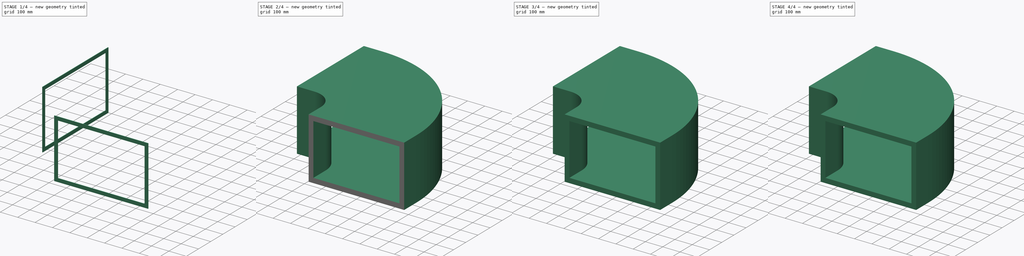
[diagram: build sequence overview — one tinted view per stage of 4, left to right]
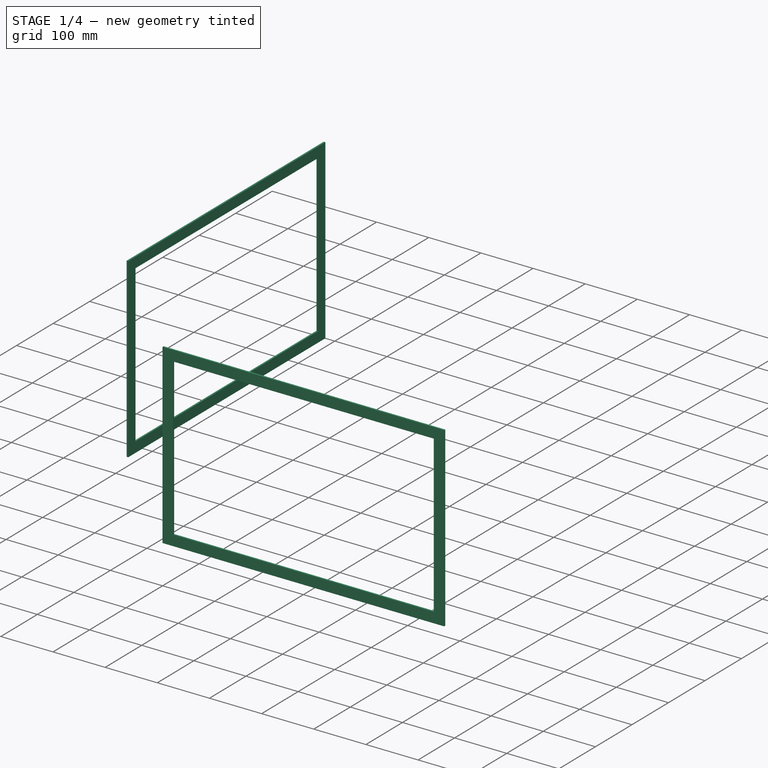
[diagram: stage 1 of 4 — iso view after this stage's code; geometry added in this stage tinted green]
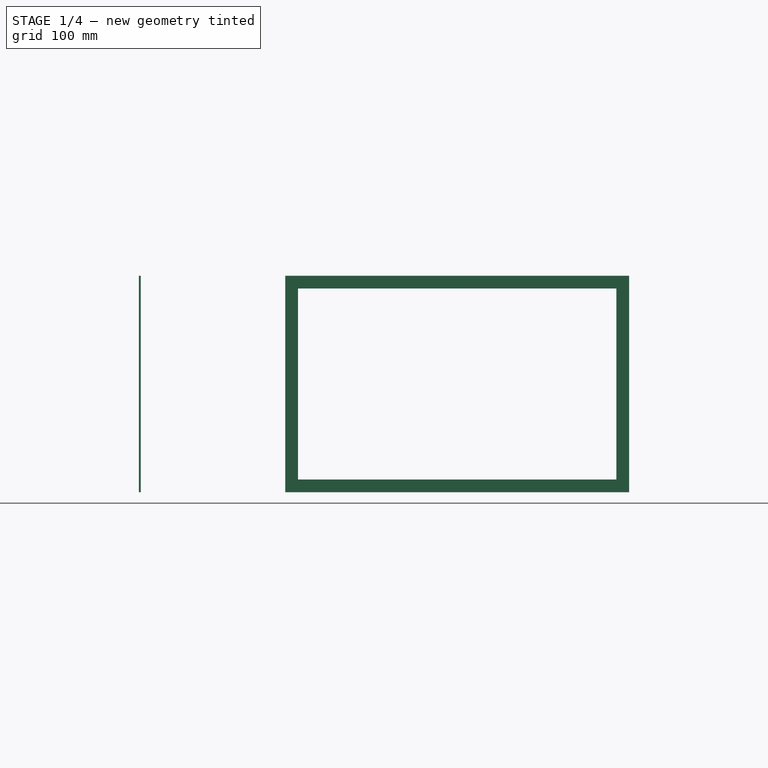
[diagram: stage 1 of 4 — front view after this stage's code; geometry added in this stage tinted green]
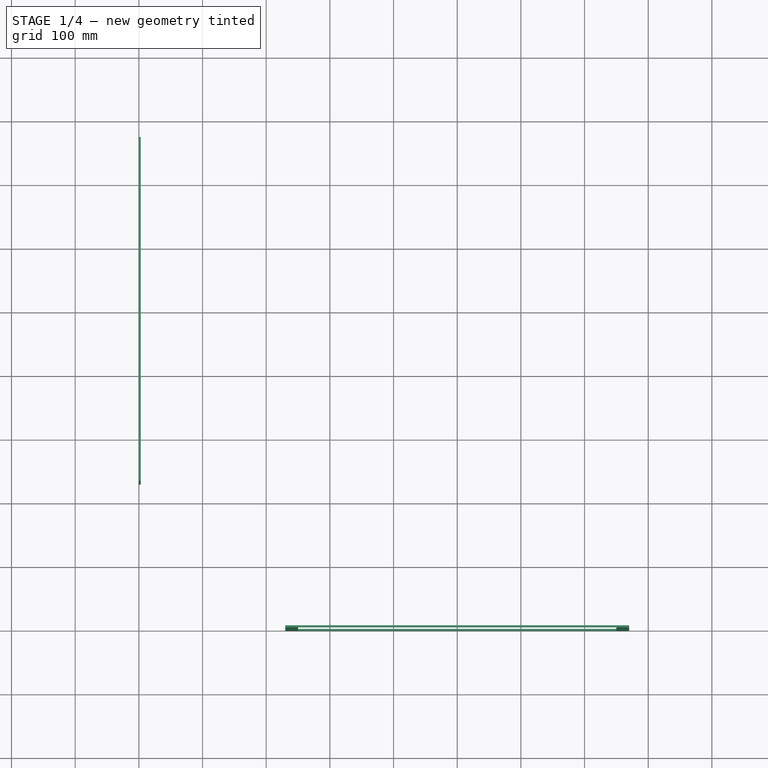
[diagram: stage 1 of 4 — top view after this stage's code; geometry added in this stage tinted green]
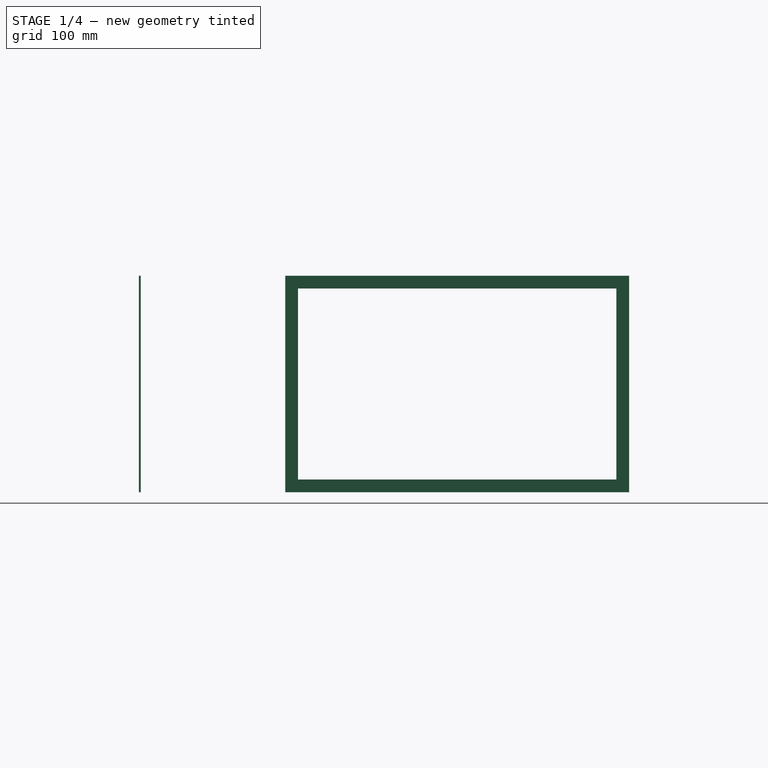
[diagram: stage 1 of 4 — right view after this stage's code; geometry added in this stage tinted green]
FCSTD DOCUMENT  (FreeCAD 0.16R6704 (Git))
Label: Extended_retangular_bend
License: All rights reserved
LicenseURL: http://en.wikipedia.org/wiki/All_rights_reserved
objects: App::DocumentObjectGroup×7, Sketcher::SketchObject×4, Part::FeaturePython×4, Part::Thickness×2, Part::Extrusion×2, Part::Cut×2, Part::Sweep×1, Part::Compound×1, Spreadsheet::Sheet×1
note: 16 computed .brp shape members not serialized (recipe doc carries the construction recipe); baked Part::Feature solids carry a one-line shape summary decoded from their .brp

FEATURE [Sketcher::SketchObject] Sketch036  label="ANGLE_RADIUS_conector"
  expr: Constraints.Extension_01 = Settings_rectangular_extended_conection.e_side_1
  expr: Constraints.Curvature_angle = Settings_rectangular_extended_conection.a_curvature
  expr: Constraints.Extension_02 = Settings_rectangular_extended_conection.e_side_2
  expr: Constraints.Axis_radius = Settings_rectangular_extended_conection.r_axis
  sketch-geometry (5):
    g0: ArcOfCircle CenterX=100 CenterY=-400 CenterZ=0 NormalX=0 NormalY=0 NormalZ=1 Radius=400 StartAngle=0 EndAngle=1.5708
    g1: LineSegment [constr] StartX=100 StartY=-400 StartZ=0 EndX=100 EndY=-3.28074e-05 EndZ=0
    g2: LineSegment [constr] StartX=100 StartY=-400 StartZ=0 EndX=500 EndY=-400 EndZ=0
    g3: LineSegment StartX=100 StartY=-3.28074e-05 StartZ=0 EndX=0 EndY=0 EndZ=0
    g4: LineSegment StartX=500 StartY=-400 StartZ=0 EndX=500 EndY=-500 EndZ=0
  constraints (15):
    c: Coincident(g1,g0)
    c: Coincident(g1,g0)
    c: Coincident(g2,g0)
    c: Coincident(g2,g0)
    c: Angle(g2,g1) = 1.5708  'Curvature_angle'
    c: Radius(g0) = 400  'Axis_radius'
    c: Tangent(g3,g0)  'Constraint7'
    c: Tangent(g0,g4)
    c: Coincident(g0,g4)
    c: Coincident(g3,g0)
    c: Distance(g3) = 100  'Extension_01'
    c: Distance(g4) = 100  'Extension_02'
    c: Vertical(g1)
    c: DistanceX(g-1,g3) = 0
    c: DistanceY(g-1,g3) = 0
FEATURE [Sketcher::SketchObject] Sketch037  label="DIMENSIONS_rectangle_01"
  Placement = pos=(0,0,0) rot=(0.57735,0.57735,0.57735;2.0944rad)
  expr: Constraints.Height = Settings_rectangular_extended_conection.h_side_1
  expr: Constraints.Width = Settings_rectangular_extended_conection.w_side_1
  sketch-geometry (7):
    g0: LineSegment StartX=-250 StartY=150 StartZ=0 EndX=250 EndY=150 EndZ=0
    g1: LineSegment StartX=250 StartY=150 StartZ=0 EndX=250 EndY=-150 EndZ=0
    g2: LineSegment StartX=250 StartY=-150 StartZ=0 EndX=-250 EndY=-150 EndZ=0
    g3: LineSegment StartX=-250 StartY=-150 StartZ=0 EndX=-250 EndY=150 EndZ=0
    g4: LineSegment [constr] StartX=-250 StartY=150 StartZ=0 EndX=250 EndY=-150 EndZ=0
    g5: LineSegment [constr] StartX=-250 StartY=-150 StartZ=0 EndX=250 EndY=150 EndZ=0
    g6: GeomPoint [constr] X=0 Y=0 Z=0
  constraints (18):
    c: Coincident(g0,g1)
    c: Coincident(g1,g2)
    c: Coincident(g2,g3)
    c: Coincident(g3,g0)
    c: Horizontal(g0)
    c: Horizontal(g2)
    c: Vertical(g1)
    c: Vertical(g3)
    c: DistanceX(g0,g0) = 500  'Width'
    c: DistanceY(g1,g1) = 300  'Height'
    c: Coincident(g4,g0)
    c: Coincident(g4,g1)
    c: Coincident(g5,g2)
    c: Coincident(g5,g0)
    c: PointOnObject(g6,g5)
    c: PointOnObject(g6,g4)
    c: DistanceX(g-1,g6) = 0  'Horizontal_distance_axis'
    c: DistanceY(g-1,g6) = 0  'Vertical_distance_axis'
FEATURE [Part::Sweep] Sweep017  label="Base_01 "
  Frenet = true
  Sections = -> [Sketch037]
  Solid = true
  Spine = -> Sketch036
  Transition = 1
FEATURE [Sketcher::SketchObject] Sketch038  label="FLANGE_HEIGHT_01"
  ExternalGeometry = -> [Sweep017]
  Placement = pos=(-3e-12,0,0) rot=(0.57735,-0.57735,-0.57735;2.0944rad)
  Support = -> Sweep017 [Face14]
  expr: Constraints.Flange_01 = Settings_rectangular_extended_conection.flange_height
  sketch-geometry (12):
    g0: LineSegment StartX=-250 StartY=150 StartZ=0 EndX=250 EndY=150 EndZ=0
    g1: LineSegment StartX=250 StartY=150 StartZ=0 EndX=250 EndY=-150 EndZ=0
    g2: LineSegment StartX=250 StartY=-150 StartZ=0 EndX=-250 EndY=-150 EndZ=0
    g3: LineSegment StartX=-250 StartY=-150 StartZ=0 EndX=-250 EndY=150 EndZ=0
    g4: LineSegment StartX=-270 StartY=170 StartZ=0 EndX=270 EndY=170 EndZ=0
    g5: LineSegment StartX=270 StartY=170 StartZ=0 EndX=270 EndY=-170 EndZ=0
    g6: LineSegment StartX=270 StartY=-170 StartZ=0 EndX=-270 EndY=-170 EndZ=0
    g7: LineSegment StartX=-270 StartY=-170 StartZ=0 EndX=-270 EndY=170 EndZ=0
    g8: LineSegment [constr] StartX=-250 StartY=150 StartZ=0 EndX=-270 EndY=150 EndZ=0
    g9: LineSegment [constr] StartX=-250 StartY=150 StartZ=0 EndX=-250 EndY=170 EndZ=0
    g10: LineSegment [constr] StartX=250 StartY=-150 StartZ=0 EndX=270 EndY=-150 EndZ=0
    g11: LineSegment [constr] StartX=250 StartY=-150 StartZ=0 EndX=250 EndY=-170 EndZ=0
  constraints (38):
    c: Coincident(g0,g1)
    c: Coincident(g1,g2)
    c: Coincident(g2,g3)
    c: Coincident(g3,g0)
    c: Horizontal(g0)
    c: Horizontal(g2)
    c: Vertical(g1)
    c: Vertical(g3)
    c: Coincident(g4,g5)
    c: Coincident(g5,g6)
    c: Coincident(g6,g7)
    c: Coincident(g7,g4)
    c: Horizontal(g4)
    c: Horizontal(g6)
    c: Vertical(g5)
    c: Vertical(g7)
    c: PointOnObject(g8,g3)
    c: PointOnObject(g8,g7)
    c: PointOnObject(g9,g0)
    c: PointOnObject(g10,g1)
    c: PointOnObject(g11,g2)
    c: PointOnObject(g9,g4)
    c: Angle(g9) = 1.5708
    c: Angle(g8) = 3.14159
    c: PointOnObject(g10,g5)
    c: Angle(g10) = 0
    c: PointOnObject(g11,g6)
    c: Angle(g11) = -1.5708
    c: DistanceX(g4,g0) = 20  'Flange_01'
    c: Equal(g8,g9)
    c: Equal(g9,g10)
    c: Equal(g10,g11)
    c: Coincident(g0,g9)
    c: Coincident(g0,g8)
    c: Coincident(g11,g1)
    c: Coincident(g1,g10)
    c: Coincident(g0,g-6)
    c: Coincident(g2,g-5)
FEATURE [Sketcher::SketchObject] Sketch039  label="FLANGE_HEIGHT_02"
  ExternalGeometry = -> [Sweep017]
  Placement = pos=(-5.2e-11,-500,0) rot=(1,0,0;1.5708rad)
  Support = -> Sweep017 [Face13]
  expr: Constraints.Flange_02 = Settings_rectangular_extended_conection.flange_height
  sketch-geometry (12):
    g0: LineSegment StartX=250 StartY=150 StartZ=0 EndX=750 EndY=150 EndZ=0
    g1: LineSegment StartX=750 StartY=150 StartZ=0 EndX=750 EndY=-150 EndZ=0
    g2: LineSegment StartX=750 StartY=-150 StartZ=0 EndX=250 EndY=-150 EndZ=0
    g3: LineSegment StartX=250 StartY=-150 StartZ=0 EndX=250 EndY=150 EndZ=0
    g4: LineSegment StartX=230 StartY=170 StartZ=0 EndX=770 EndY=170 EndZ=0
    g5: LineSegment StartX=770 StartY=170 StartZ=0 EndX=770 EndY=-170 EndZ=0
    g6: LineSegment StartX=770 StartY=-170 StartZ=0 EndX=230 EndY=-170 EndZ=0
    g7: LineSegment StartX=230 StartY=-170 StartZ=0 EndX=230 EndY=170 EndZ=0
    g8: LineSegment [constr] StartX=230 StartY=150 StartZ=0 EndX=250 EndY=150 EndZ=0
    g9: LineSegment [constr] StartX=250 StartY=150 StartZ=0 EndX=250 EndY=170 EndZ=0
    g10: LineSegment [constr] StartX=750 StartY=-150 StartZ=0 EndX=770 EndY=-150 EndZ=0
    g11: LineSegment [constr] StartX=750 StartY=-150 StartZ=0 EndX=750 EndY=-170 EndZ=0
  constraints (38):
    c: Coincident(g0,g1)
    c: Coincident(g1,g2)
    c: Coincident(g2,g3)
    c: Coincident(g3,g0)
    c: Horizontal(g0)
    c: Horizontal(g2)
    c: Vertical(g1)
    c: Vertical(g3)
    c: Coincident(g4,g5)
    c: Coincident(g5,g6)
    c: Coincident(g6,g7)
    c: Coincident(g7,g4)
    c: Horizontal(g4)
    c: Horizontal(g6)
    c: Vertical(g5)
    c: Vertical(g7)
    c: PointOnObject(g8,g3)
    c: PointOnObject(g9,g4)
    c: PointOnObject(g10,g1)
    c: PointOnObject(g11,g6)
    c: PointOnObject(g8,g7)
    c: Angle(g8) = 0
    c: PointOnObject(g9,g0)
    c: Angle(g9) = 1.5708
    c: PointOnObject(g10,g5)
    c: Angle(g10) = 0
    c: PointOnObject(g11,g2)
    c: Angle(g11) = -1.5708
    c: DistanceX(g4,g0) = 20  'Flange_02'
    c: Equal(g8,g9)
    c: Equal(g9,g10)
    c: Equal(g10,g11)
    c: Coincident(g0,g9)
    c: Coincident(g0,g8)
    c: Coincident(g11,g1)
    c: Coincident(g1,g10)
    c: Coincident(g0,g-6)
    c: Coincident(g2,g-5)
FEATURE [Part::Extrusion] Extrude_Sketch038  label="Flange_THICKNESS_01"
  Base = -> Sketch038
  Dir = (3,0,0)
  Solid = true
  expr: Dir.x = Settings_rectangular_extended_conection.flange_thickness
FEATURE [Part::Extrusion] Extrude_Sketch039  label="Flange_THICKNESS_02"
  Base = -> Sketch039
  Dir = (0,3,0)
  Solid = true
  expr: Dir.y = Settings_rectangular_extended_conection.flange_thickness
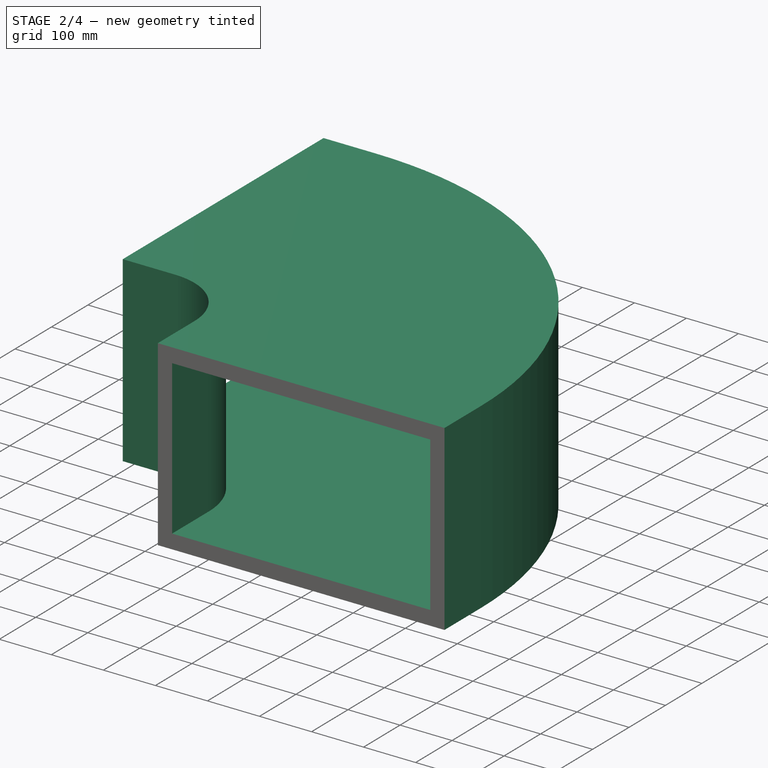
[diagram: stage 2 of 4 — iso view after this stage's code; geometry added in this stage tinted green]
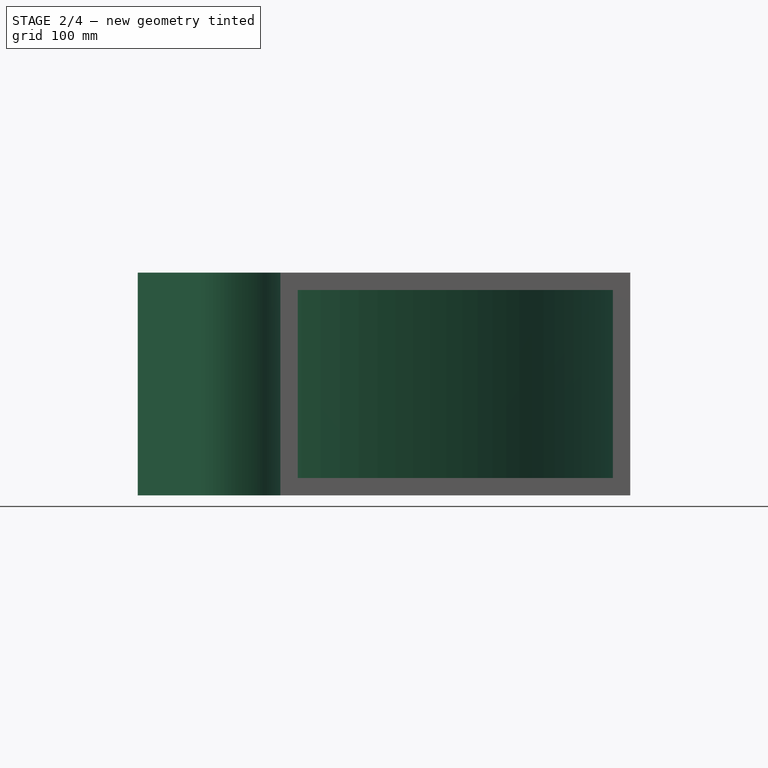
[diagram: stage 2 of 4 — front view after this stage's code; geometry added in this stage tinted green]
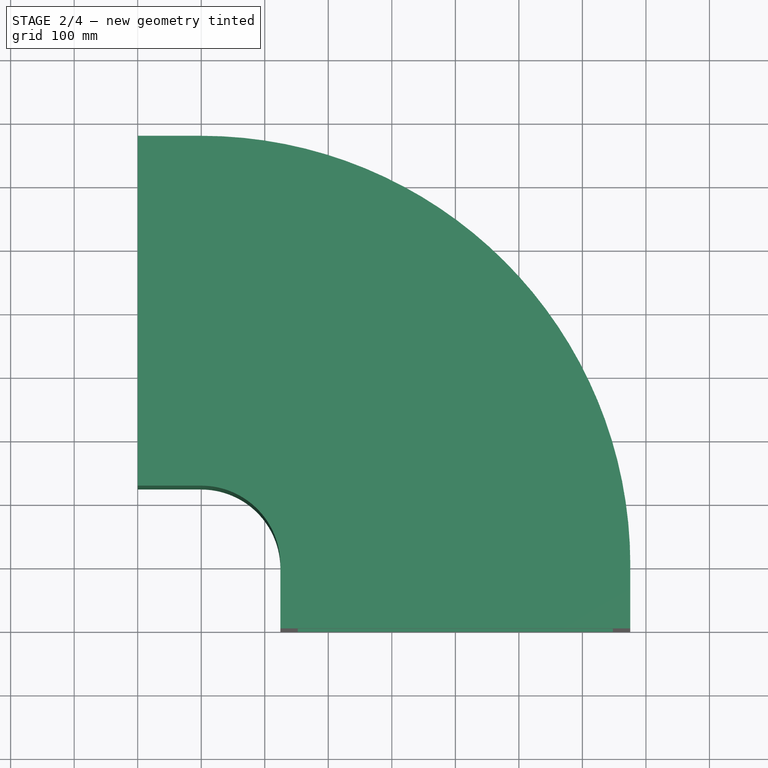
[diagram: stage 2 of 4 — top view after this stage's code; geometry added in this stage tinted green]
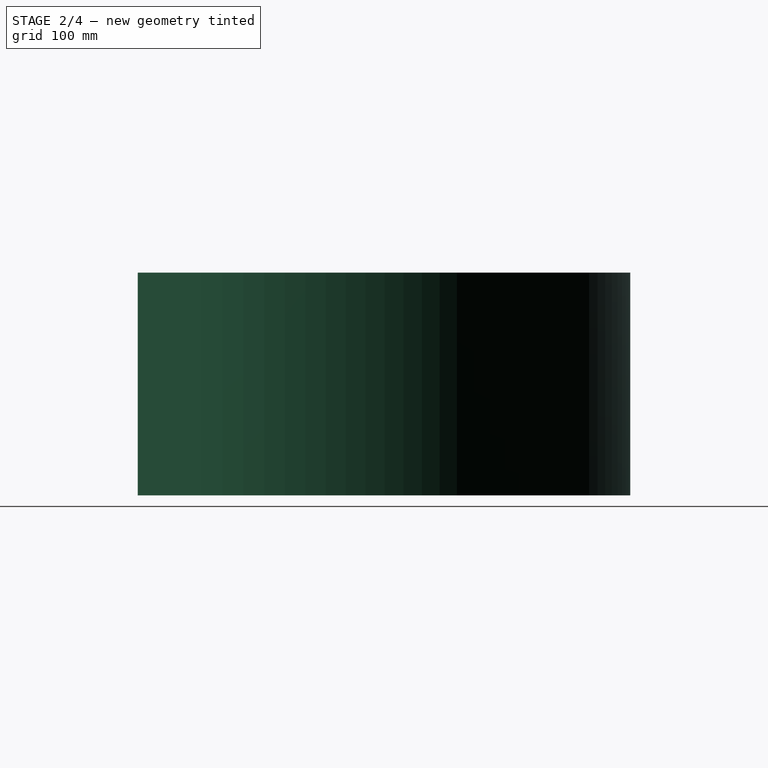
[diagram: stage 2 of 4 — right view after this stage's code; geometry added in this stage tinted green]
FEATURE [Part::Thickness] Thickness012  label="1.1-Rectangular_bend_SHEET_THICKNESS"
  Faces = -> Sweep017 [Face13,Face14]
  Intersection = false
  Join = 2
  Mode = 0
  SelfIntersection = false
  Value = -2
  expr: Value = Settings_rectangular_extended_conection.sheet_thickness * -1
FEATURE [Part::Thickness] Thickness013  label="2.1-Insulation_THICKNESS"
  Faces = -> Sweep017 [Face14,Face13]
  Intersection = false
  Join = 2
  Mode = 0
  SelfIntersection = false
  Value = 25.4
  expr: Value = Settings_rectangular_extended_conection.insu_thickness
FEATURE [Part::Compound] Compound008  label="01-Extended_rectangular_bend_flanges"
  Links = -> [Thickness012,Extrude_Sketch038,Extrude_Sketch039]
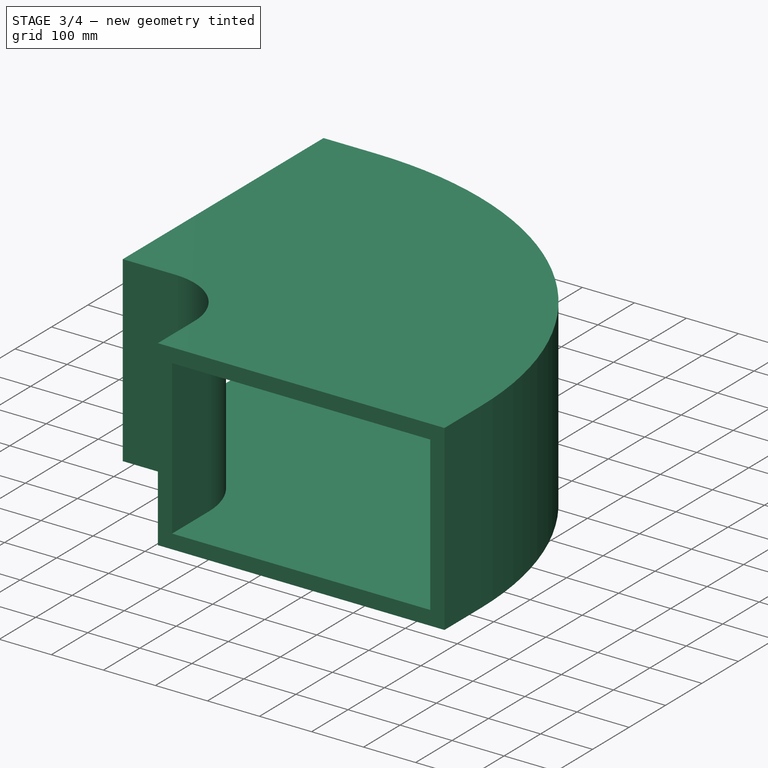
[diagram: stage 3 of 4 — iso view after this stage's code; geometry added in this stage tinted green]
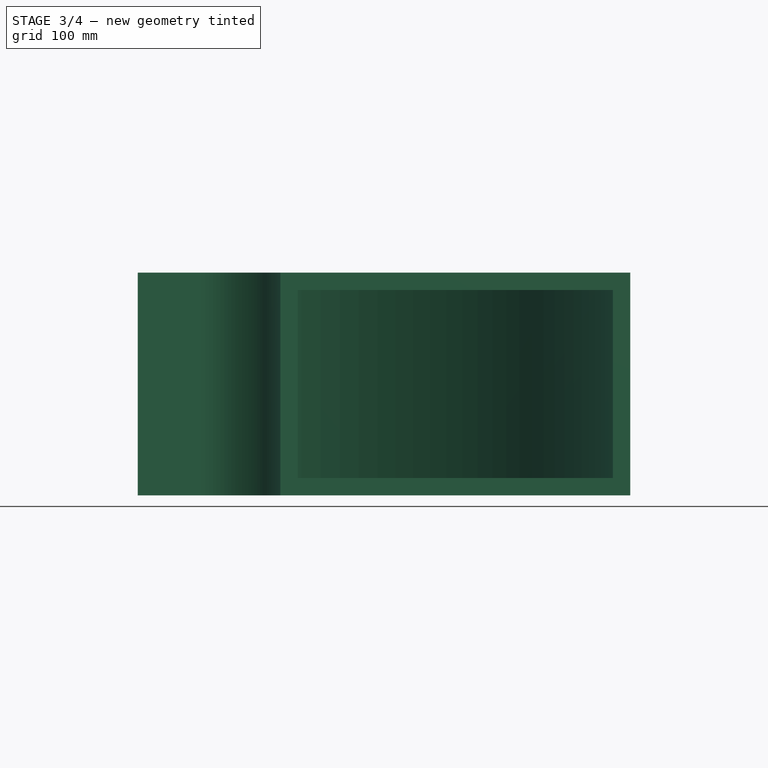
[diagram: stage 3 of 4 — front view after this stage's code; geometry added in this stage tinted green]
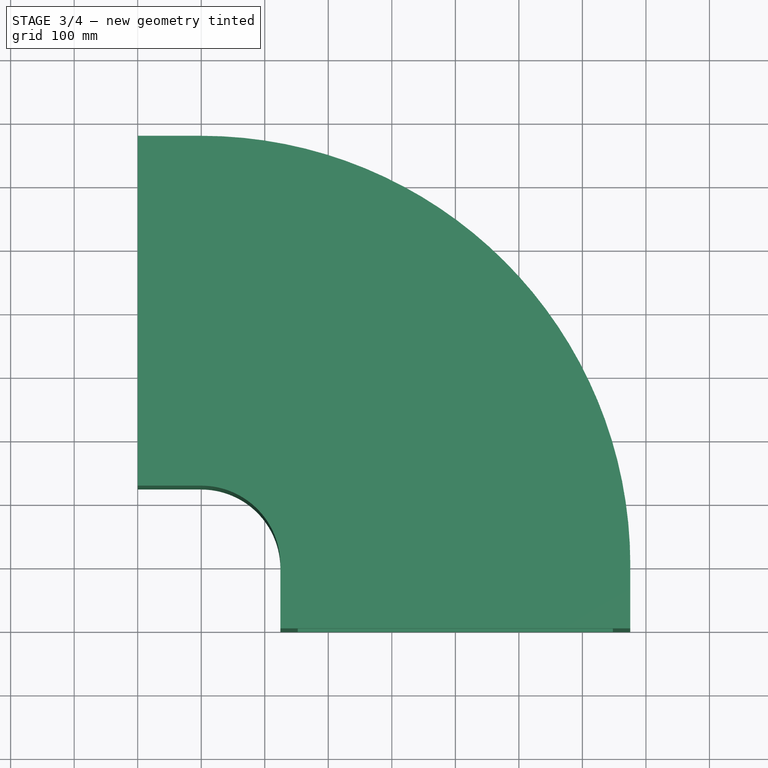
[diagram: stage 3 of 4 — top view after this stage's code; geometry added in this stage tinted green]
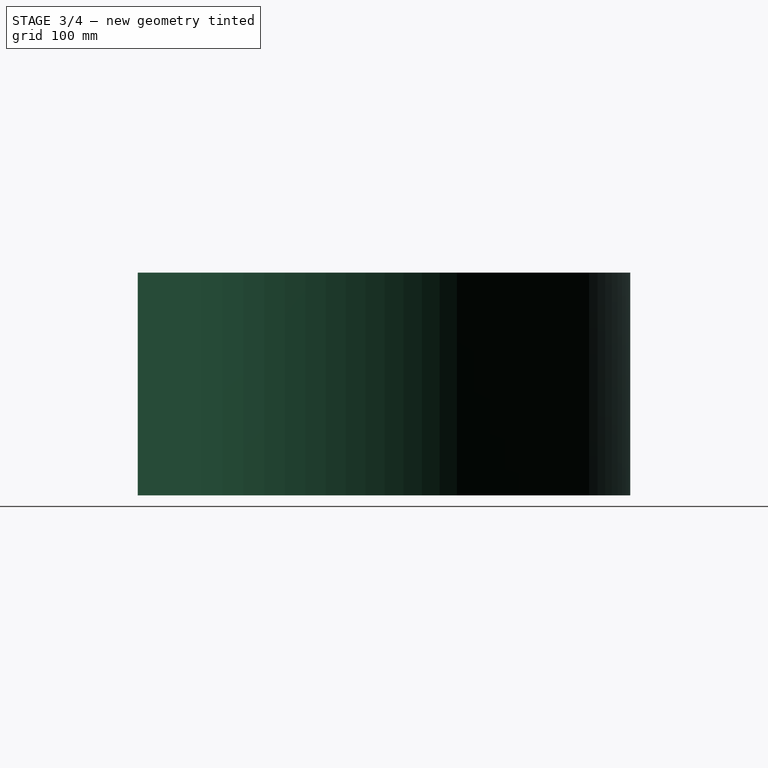
[diagram: stage 3 of 4 — right view after this stage's code; geometry added in this stage tinted green]
FEATURE [Part::Cut] Cut006  label="Cut "
  Base = -> Thickness013
  Tool = -> Extrude_Sketch038
FEATURE [Part::Cut] Cut007  label="02-Insulation"
  Base = -> Cut006
  Tool = -> Extrude_Sketch039
FEATURE [Part::FeaturePython] Clone028  label="Clone of 2.1-Insulation_THICKNESS"  # Draft clone (typed FeaturePython)
  Objects = -> [Thickness013]
  Scale = (1,1,1)
FEATURE [App::DocumentObjectGroup] Grupo049  label="No_flanges"
  Group = -> [Clone027,Clone028]
FEATURE [App::DocumentObjectGroup] Grupo048  label="B-Final_parts_clones"
  Group = -> [Grupo049,Grupo050]
FEATURE [App::DocumentObjectGroup] Group016  label="A-Components"
  Group = -> [Grupo046,Grupo047]
FEATURE [Spreadsheet::Sheet] Spreadsheet008  label="Settings_rectangular_extended_conection"
  cells = A1=Dimensionamento - Settings; A3=01. Lado 1 - Side 1; A4=1.1. Largura do lado 1 - Width side 1:; B4(w_side_1)=500; C4=Alias: w_side_1; A5=1.2. Altura do lado 1 - Height side 1:; B5(h_side_1)=300; C5=Alias: h_side_1; A6=1.3. Extensão lado 1 - Extension side 1:; B6(e_side_1)=100; C6=Alias: e_side_1; A8=02. Lado 2 - Side 2; A9=2.1. Extensão lado 2 - Extension side 2:; B9(e_side_2)=100; C9=Alias: e_side_2; A11=03. Ângulos e raios de curvaturas - Angles and curvature radius; A12=3.1. Ângulo da curvatura - Curvature angle:; B12(a_curvature)=90; C12=Alias: a_curvature; A13=3.2. Raio do eixo - Axis radius:; B13(r_axis)=400; C13=Alias: r_axis; A15=04. Espessura da chapa - Sheet thickness:; B15(sheet_thickness)=2; C15=Alias: sheet_thickness; A17=05. Flanges; A18=5.1. Altura flanges - Flanges height:; B18(flange_height)=20; C18=Alias: flange_height; A19=5.2. Espessura flanges - Flanges thickness:; B19(flange_thickness)=3; C19=Alias: flange_thickness; A21=06. Espessura isolamento - Insulation thickness:; B21(insu_thickness)=25.4; C21=Alias: insu_thickness
FEATURE [App::DocumentObjectGroup] Grupo016  label="Extended_retangular_bend"
  Group = -> [Spreadsheet008,Group016,Grupo048]
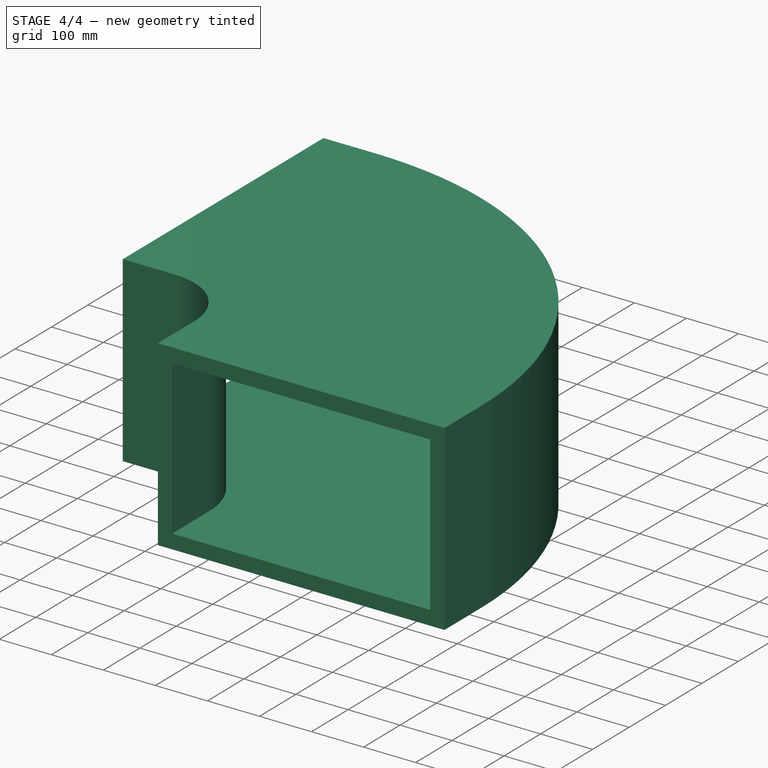
[diagram: stage 4 of 4 — iso view after this stage's code; geometry added in this stage tinted green]
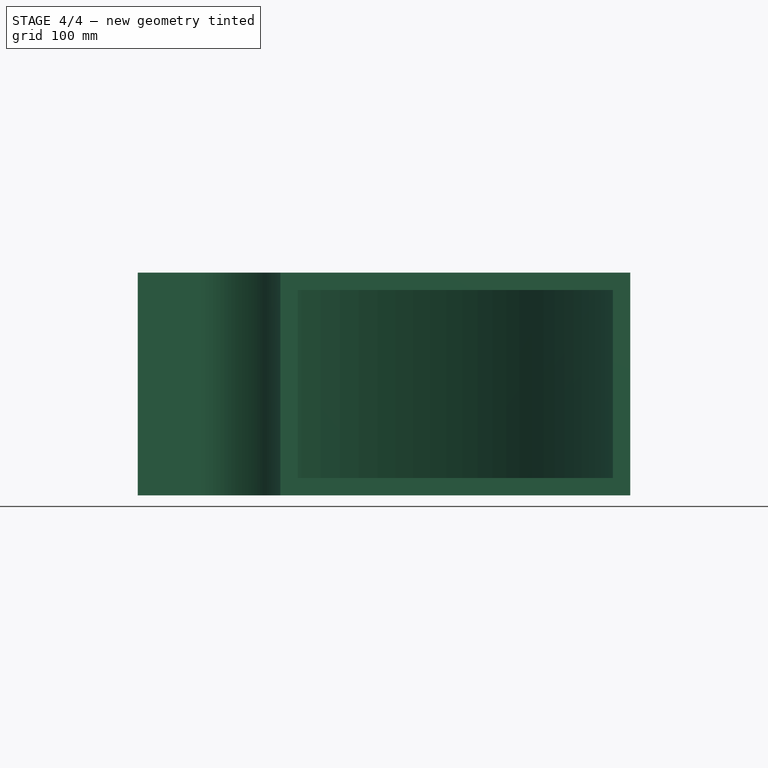
[diagram: stage 4 of 4 — front view after this stage's code; geometry added in this stage tinted green]
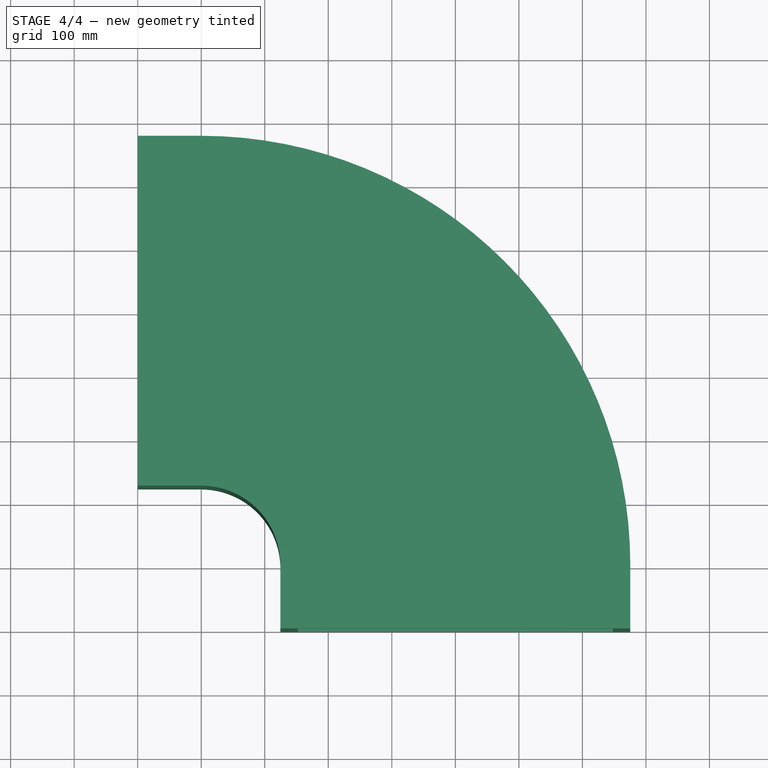
[diagram: stage 4 of 4 — top view after this stage's code; geometry added in this stage tinted green]
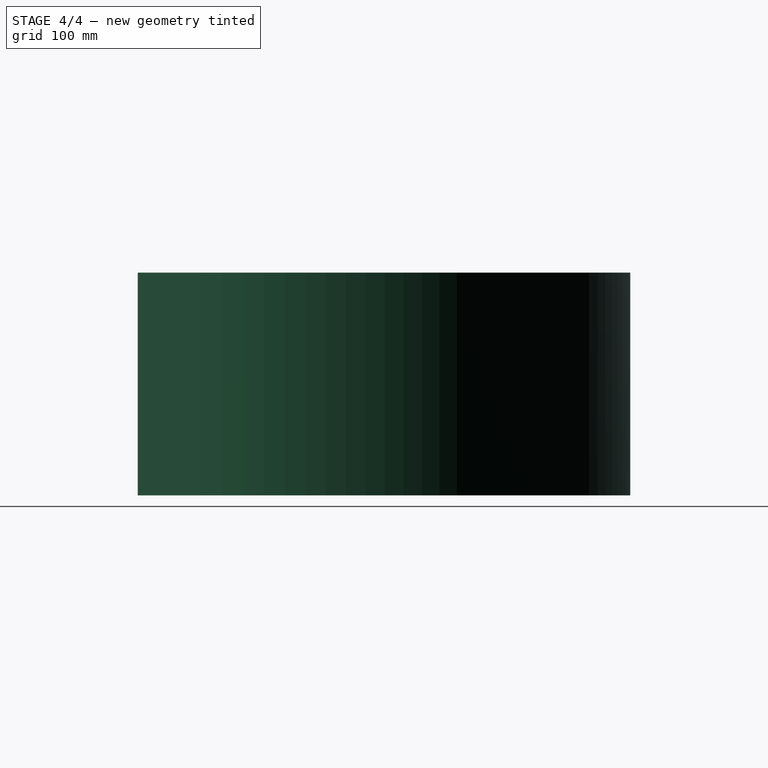
[diagram: stage 4 of 4 — right view after this stage's code; geometry added in this stage tinted green]
FEATURE [App::DocumentObjectGroup] Grupo046  label="A-Bases"
  Group = -> [Sketch036]
FEATURE [App::DocumentObjectGroup] Grupo047  label="B-Parts"
  Group = -> [Compound008,Cut007]
FEATURE [Part::FeaturePython] Clone025  label="Clone of 01-Extended_rectangular_bend_flanges"  # Draft clone (typed FeaturePython)
  Objects = -> [Compound008]
  Scale = (1,1,1)
FEATURE [Part::FeaturePython] Clone026  label="Clone of 02-Insulation"  # Draft clone (typed FeaturePython)
  Objects = -> [Cut007]
  Scale = (1,1,1)
FEATURE [App::DocumentObjectGroup] Grupo050  label="Flanges"
  Group = -> [Clone025,Clone026]
FEATURE [Part::FeaturePython] Clone027  label="Clone of 1.1-Rectangular_bend_SHEET_THICKNESS"  # Draft clone (typed FeaturePython)
  Objects = -> [Thickness012]
  Scale = (1,1,1)
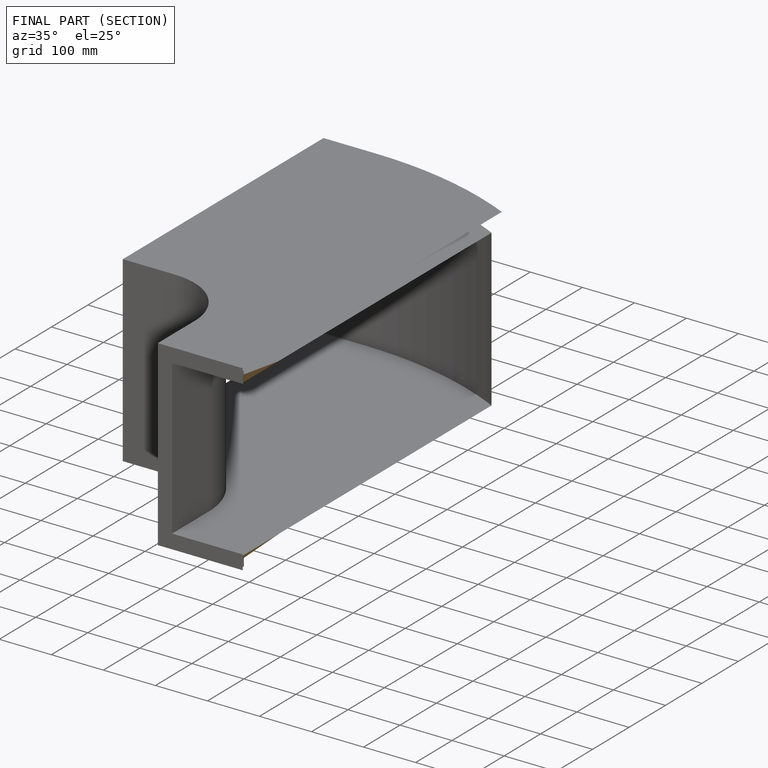
[diagram: finished part — half-section view (interior)]
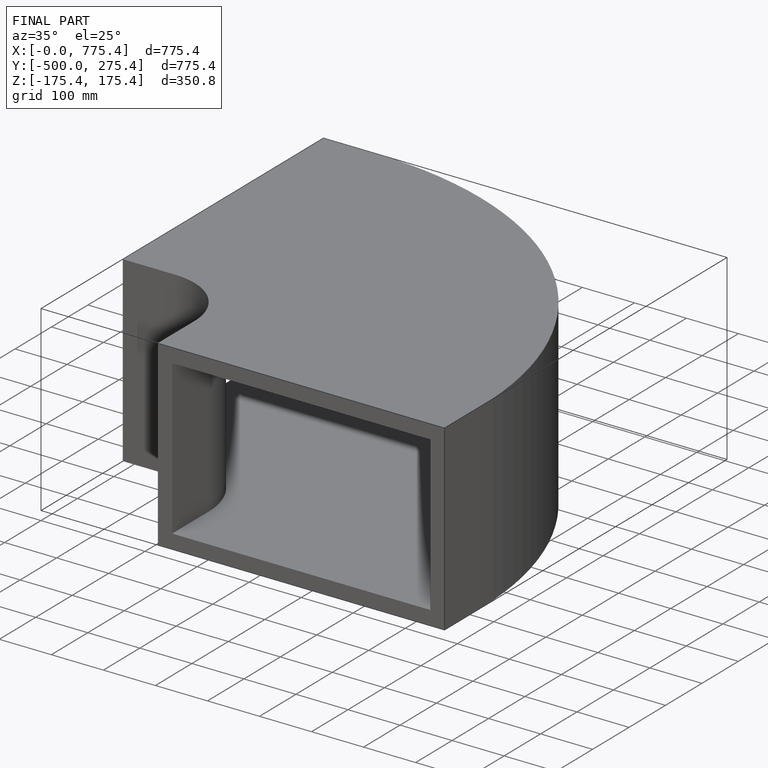
[diagram: finished part — iso view with bounding-box wireframe]
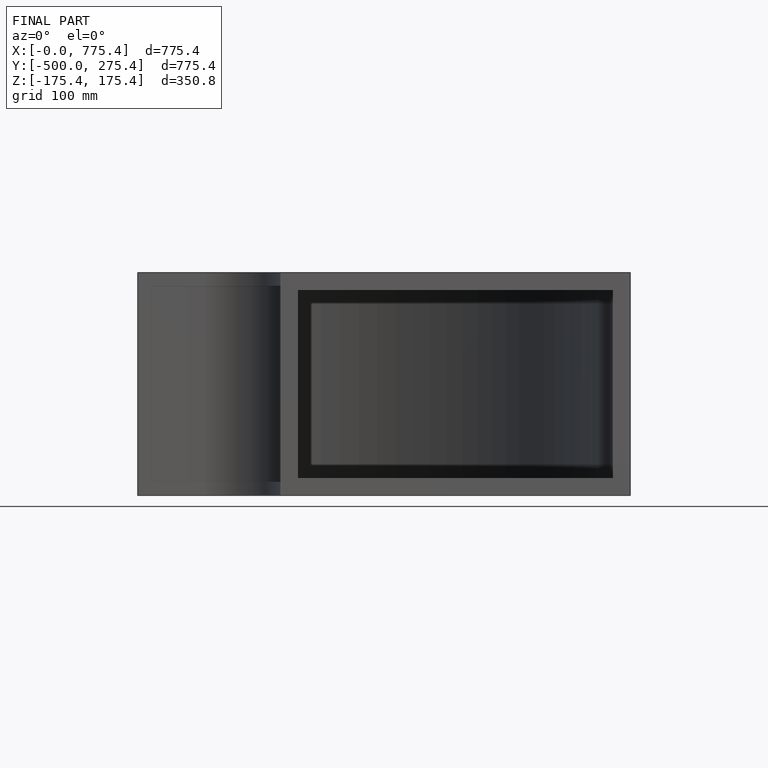
[diagram: finished part — front view with bounding-box wireframe]
